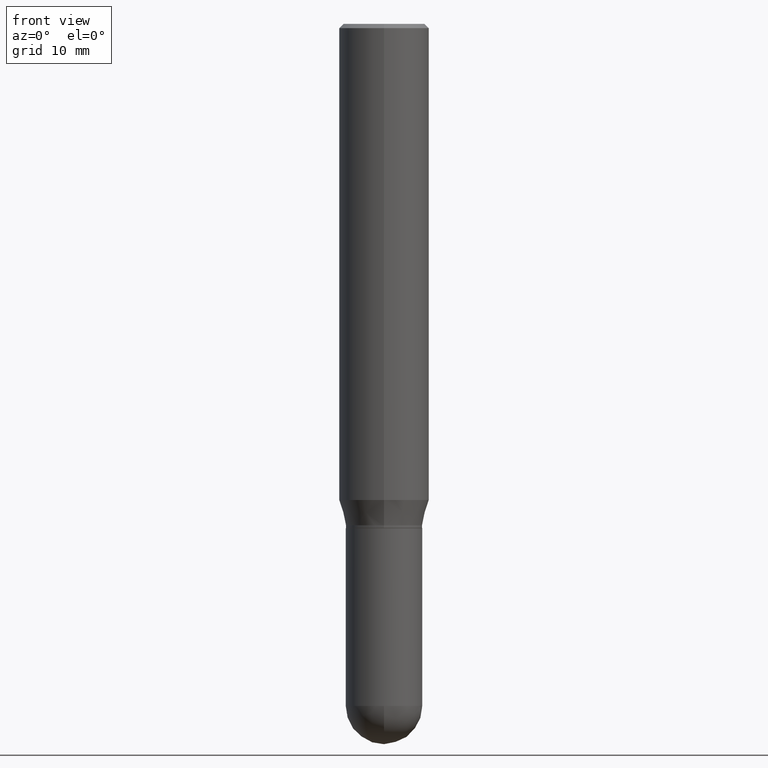
[diagram: clean part render]
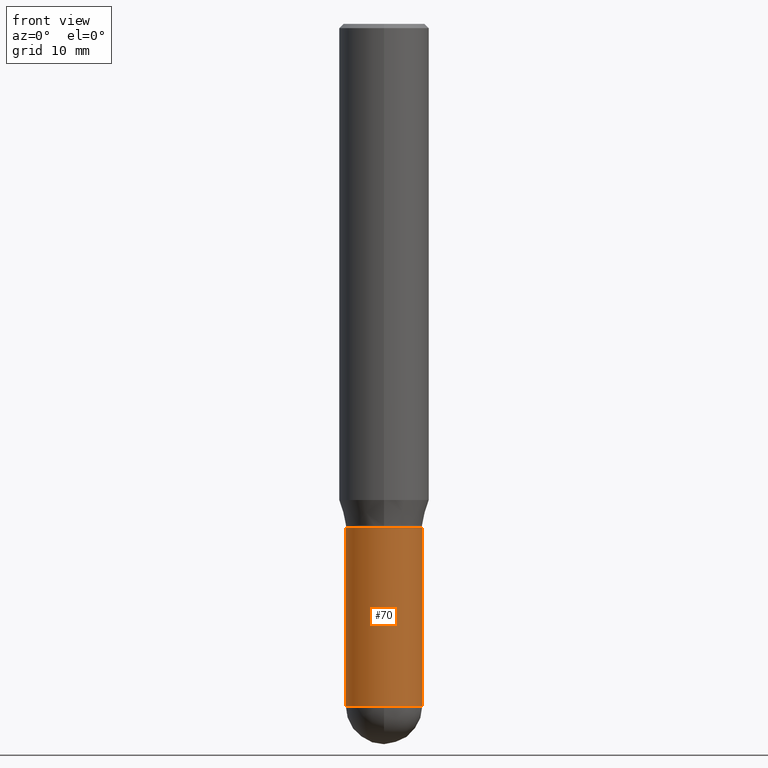
[diagram: same view with one face highlighted and labeled with its STEP entity id]
A machine part, front view. The second image highlights one B-rep face of the part: STEP entity #70.
In plain terms, the highlighted cylindrical surface (partial cylindrical patch) has radius 3.3731 mm, axis along (-0, 0, 1).
Its self-contained STEP definition (entity closure, byte-faithful):
#12 = ORIENTED_EDGE ( 'NONE', *, *, #279, .T. ) ;
#25 = DIRECTION ( 'NONE',  ( -2.445468806185136877E-29, 3.491481338843145188E-15, 1.000000000000000000 ) ) ;
#28 = DIRECTION ( 'NONE',  ( 1.000000000000000000, -6.982962677686263555E-15, 0.000000000000000000 ) ) ;
#29 = DIRECTION ( 'NONE',  ( -2.445468806185136597E-29, 3.491481338843145583E-15, 1.000000000000000000 ) ) ;
#60 = DIRECTION ( 'NONE',  ( -2.445468806185136877E-29, 3.491481338843145188E-15, 1.000000000000000000 ) ) ;
#63 = ORIENTED_EDGE ( 'NONE', *, *, #172, .T. ) ;
#65 = CARTESIAN_POINT ( 'NONE',  ( -0.1328000000000000014, 9.436007530894130566E-16, -6.532345799858513932E-30 ) ) ;
#66 = CARTESIAN_POINT ( 'NONE',  ( 4.279570410823989044E-29, -6.110092342975505460E-15, -1.750000000000000222 ) ) ;
#70 = ADVANCED_FACE ( 'NONE', ( #385 ), #309, .T. ) ;
#89 = AXIS2_PLACEMENT_3D ( 'NONE', #136, #291, #452 ) ;
#92 = CARTESIAN_POINT ( 'NONE',  ( -0.1328000000000000014, -6.243962731053086807E-15, -2.367199999999999971 ) ) ;
#99 = CARTESIAN_POINT ( 'NONE',  ( 0.1328000000000000014, -8.114900927739235889E-15, -2.367199999999999971 ) ) ;
#125 = CARTESIAN_POINT ( 'NONE',  ( -9.436007530893550753E-16, -0.1328000000000082725, -2.367199999999999083 ) ) ;
#136 = CARTESIAN_POINT ( 'NONE',  ( 5.788913758001455526E-29, -8.265034625309493084E-15, -2.367199999999999971 ) ) ;
#142 = CARTESIAN_POINT ( 'NONE',  ( 0.1328000000000000014, -7.037429786572241288E-15, -1.750000000000000222 ) ) ;
#144 = EDGE_CURVE ( 'NONE', #440, #251, #419, .T. ) ;
#165 = VERTEX_POINT ( 'NONE', #142 ) ;
#167 = ORIENTED_EDGE ( 'NONE', *, *, #489, .F. ) ;
#172 = EDGE_CURVE ( 'NONE', #362, #165, #193, .T. ) ;
#180 = DIRECTION ( 'NONE',  ( 1.000000000000000000, -6.982962677686266711E-15, 4.876176775795935232E-29 ) ) ;
#193 = LINE ( 'NONE', #383, #289 ) ;
#207 = DIRECTION ( 'NONE',  ( -2.445468806185136597E-29, 3.491481338843145583E-15, 1.000000000000000000 ) ) ;
#251 = VERTEX_POINT ( 'NONE', #331 ) ;
#254 = AXIS2_PLACEMENT_3D ( 'NONE', #413, #207, #367 ) ;
#279 = EDGE_CURVE ( 'NONE', #292, #362, #373, .T. ) ;
#281 = ORIENTED_EDGE ( 'NONE', *, *, #475, .T. ) ;
#289 = VECTOR ( 'NONE', #60, 39.37007874015748143 ) ;
#291 = DIRECTION ( 'NONE',  ( -2.445468806185136597E-29, 3.491481338843145583E-15, 1.000000000000000000 ) ) ;
#292 = VERTEX_POINT ( 'NONE', #125 ) ;
#309 = CYLINDRICAL_SURFACE ( 'NONE', #479, 0.1328000000000000014 ) ;
#331 = CARTESIAN_POINT ( 'NONE',  ( -0.1328000000000000014, -6.243962731053086018E-15, -1.750000000000000222 ) ) ;
#351 = CIRCLE ( 'NONE', #89, 0.1328000000000000014 ) ;
#362 = VERTEX_POINT ( 'NONE', #99 ) ;
#367 = DIRECTION ( 'NONE',  ( 1.000000000000000000, -6.982962677686263555E-15, 0.000000000000000000 ) ) ;
#373 = CIRCLE ( 'NONE', #254, 0.1328000000000000014 ) ;
#380 = AXIS2_PLACEMENT_3D ( 'NONE', #66, #505, #28 ) ;
#382 = CARTESIAN_POINT ( 'NONE',  ( 0.000000000000000000, 0.000000000000000000, 0.000000000000000000 ) ) ;
#383 = CARTESIAN_POINT ( 'NONE',  ( 0.1328000000000000014, -9.273374435967362223E-16, 6.475562758257002307E-30 ) ) ;
#385 = FACE_OUTER_BOUND ( 'NONE', #393, .T. ) ;
#393 = EDGE_LOOP ( 'NONE', ( #402, #281, #12, #63, #167 ) ) ;
#402 = ORIENTED_EDGE ( 'NONE', *, *, #144, .F. ) ;
#413 = CARTESIAN_POINT ( 'NONE',  ( 5.788913758001455526E-29, -8.265034625309493084E-15, -2.367199999999999971 ) ) ;
#419 = LINE ( 'NONE', #65, #423 ) ;
#423 = VECTOR ( 'NONE', #25, 39.37007874015748143 ) ;
#440 = VERTEX_POINT ( 'NONE', #92 ) ;
#452 = DIRECTION ( 'NONE',  ( 1.000000000000000000, -6.982962677686263555E-15, 0.000000000000000000 ) ) ;
#475 = EDGE_CURVE ( 'NONE', #440, #292, #351, .T. ) ;
#479 = AXIS2_PLACEMENT_3D ( 'NONE', #382, #29, #180 ) ;
#488 = CIRCLE ( 'NONE', #380, 0.1328000000000000014 ) ;
#489 = EDGE_CURVE ( 'NONE', #251, #165, #488, .T. ) ;
#505 = DIRECTION ( 'NONE',  ( -2.445468806185136597E-29, 3.491481338843145583E-15, 1.000000000000000000 ) ) ;